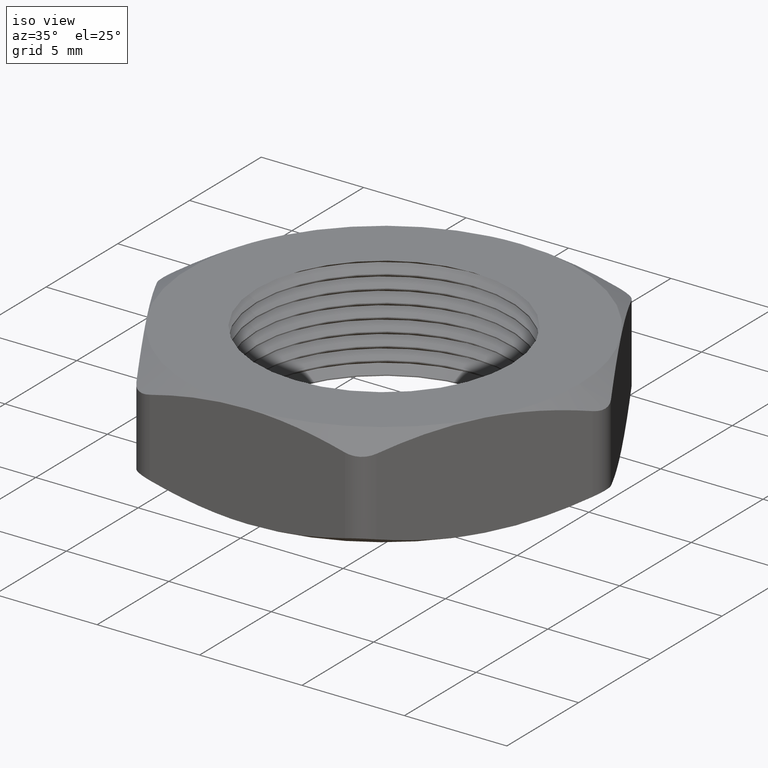
[diagram: clean part render]
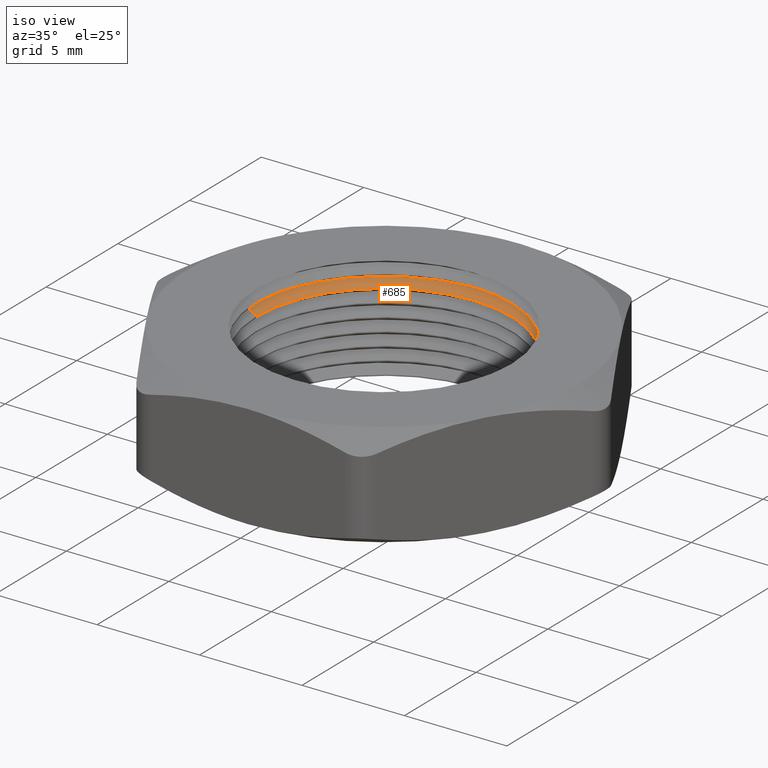
[diagram: same view with one face highlighted and labeled with its STEP entity id]
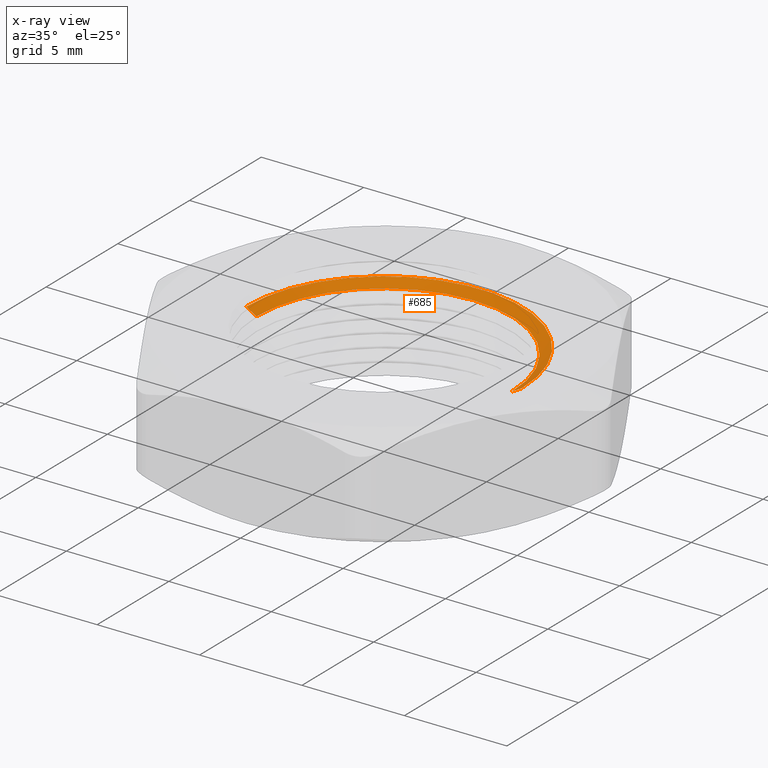
[diagram: x-ray of the same camera — body ghosted, the highlighted face saturated]
A machine part, iso view. The second image highlights one B-rep face of the part: STEP entity #685.
The next image is the same camera in x-ray: the body ghosted, the highlighted face saturated — about 0% of this face is hidden behind the body in this view.
In plain terms, the highlighted conical surface has half-angle 60 deg.
Its self-contained STEP definition (entity closure, byte-faithful):
#130 = VERTEX_POINT ( 'NONE', #1062 ) ;
#133 = VERTEX_POINT ( 'NONE', #1016 ) ;
#135 = EDGE_CURVE ( 'NONE', #169, #133, #1014, .T. ) ;
#168 = VERTEX_POINT ( 'NONE', #1088 ) ;
#169 = VERTEX_POINT ( 'NONE', #1087 ) ;
#171 = EDGE_CURVE ( 'NONE', #168, #130, #1208, .T. ) ;
#308 = EDGE_CURVE ( 'NONE', #169, #168, #1409, .T. ) ;
#605 = ORIENTED_EDGE ( 'NONE', *, *, #135, .T. ) ;
#606 = ORIENTED_EDGE ( 'NONE', *, *, #684, .T. ) ;
#614 = ORIENTED_EDGE ( 'NONE', *, *, #308, .F. ) ;
#684 = EDGE_CURVE ( 'NONE', #133, #130, #2068, .T. ) ;
#685 = ADVANCED_FACE ( 'NONE', ( #2064 ), #2063, .F. ) ;
#686 = EDGE_LOOP ( 'NONE', ( #687, #614, #605, #606 ) ) ;
#687 = ORIENTED_EDGE ( 'NONE', *, *, #171, .F. ) ;
#1013 = CARTESIAN_POINT ( 'NONE',  ( 0.2450000000000000000, 0.0000000000000000000, 0.1519059892324151300 ) ) ;
#1014 = LINE ( 'NONE', #1013, #1038 ) ;
#1016 = CARTESIAN_POINT ( 'NONE',  ( 0.2649999999999999600, 3.245314017740485600E-017, 0.1634529946162078000 ) ) ;
#1037 = DIRECTION ( 'NONE',  ( 0.8660254037844359300, 0.0000000000000000000, 0.5000000000000046600 ) ) ;
#1038 = VECTOR ( 'NONE', #1037, 39.37007874015748100 ) ;
#1062 = CARTESIAN_POINT ( 'NONE',  ( -0.2649999999999999600, 0.0000000000000000000, 0.1634529946162078000 ) ) ;
#1087 = CARTESIAN_POINT ( 'NONE',  ( 0.2450000000000000000, 3.000384657911014900E-017, 0.1519059892324151300 ) ) ;
#1088 = CARTESIAN_POINT ( 'NONE',  ( -0.2450000000000000000, 0.0000000000000000000, 0.1519059892324151300 ) ) ;
#1122 = DIRECTION ( 'NONE',  ( -0.8660254037844359300, 1.060575238724903700E-016, 0.5000000000000046600 ) ) ;
#1123 = VECTOR ( 'NONE', #1122, 39.37007874015748100 ) ;
#1124 = CARTESIAN_POINT ( 'NONE',  ( -0.2450000000000000000, 3.000384657911014900E-017, 0.1519059892324151300 ) ) ;
#1208 = LINE ( 'NONE', #1124, #1123 ) ;
#1405 = DIRECTION ( 'NONE',  ( 1.000000000000000000, 0.0000000000000000000, 0.0000000000000000000 ) ) ;
#1406 = DIRECTION ( 'NONE',  ( 0.0000000000000000000, 0.0000000000000000000, 1.000000000000000000 ) ) ;
#1407 = CARTESIAN_POINT ( 'NONE',  ( 0.0000000000000000000, 0.0000000000000000000, 0.1519059892324151300 ) ) ;
#1408 = AXIS2_PLACEMENT_3D ( 'NONE', #1407, #1406, #1405 ) ;
#1409 = CIRCLE ( 'NONE', #1408, 0.2450000000000000000 ) ;
#2058 = DIRECTION ( 'NONE',  ( 1.000000000000000000, 0.0000000000000000000, 0.0000000000000000000 ) ) ;
#2059 = DIRECTION ( 'NONE',  ( 0.0000000000000000000, 0.0000000000000000000, 1.000000000000000000 ) ) ;
#2060 = CARTESIAN_POINT ( 'NONE',  ( 0.0000000000000000000, 0.0000000000000000000, 0.1519059892324151300 ) ) ;
#2061 = AXIS2_PLACEMENT_3D ( 'NONE', #2060, #2059, #2058 ) ;
#2063 = CONICAL_SURFACE ( 'NONE', #2061, 0.2450000000000000000, 1.047197551196592300 ) ;
#2064 = FACE_OUTER_BOUND ( 'NONE', #686, .T. ) ;
#2065 = DIRECTION ( 'NONE',  ( 1.000000000000000000, 0.0000000000000000000, 0.0000000000000000000 ) ) ;
#2066 = DIRECTION ( 'NONE',  ( 0.0000000000000000000, 0.0000000000000000000, 1.000000000000000000 ) ) ;
#2067 = AXIS2_PLACEMENT_3D ( 'NONE', #2102, #2066, #2065 ) ;
#2068 = CIRCLE ( 'NONE', #2067, 0.2649999999999999600 ) ;
#2102 = CARTESIAN_POINT ( 'NONE',  ( 0.0000000000000000000, 0.0000000000000000000, 0.1634529946162078000 ) ) ;